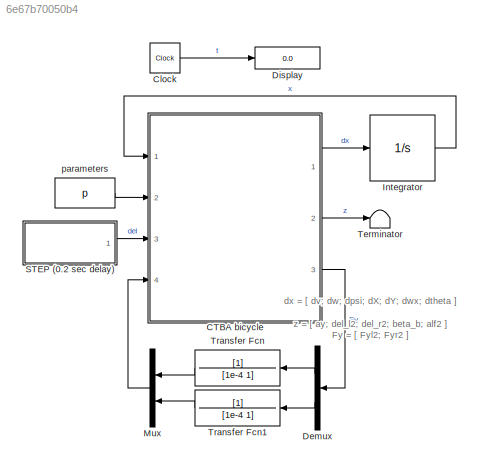
MODEL slx_6e67b70050b4
KIND model
CONFIG AbsTol = auto
CONFIG EnableMultiTasking = off
CONFIG FixedStep = auto
CONFIG MaxStep = dt
CONFIG MinStep = auto
CONFIG RelTol = 1e-3
CONFIG SampleTimeConstraint = Unconstrained
CONFIG Solver = VariableStepAuto
CONFIG SolverName = VariableStepAuto
CONFIG StartFcn = clc; clearvars\nclose all\n%% System Parameters (nominal)\n% i.e., for this investigation, ...the knobs\nm = 1452; % Mass of Vehicle (kg)\nJ = 2200; % Moment of Inertia (kg-m^2)\nJx = 510; % Roll Moment of Inertia (kg-m^2)\nL = 2.7; % Wheel base of Vehicle (m)\na = 1.120; % Length of a (m)\nb = L - a; % Length of b (m)\nh = 0.562; % C.G Height (m)\nCf = 50000; % Conering Coefficient of Front Tire (N/rad)\nCr ...<+565ch>
CONFIG StartTime = 0.0
CONFIG StopFcn = dx = datasave.get('dx').Values.Data;\nx = datasave.get('x').Values.Data;\nz = datasave.get('z').Values.Data;\nt = datasave.get('t').Values.Data;\n% Unpack states\nv = x(:,1);\nw = x(:,2);\npsi = x(:,3);\nX = x(:,4);\nY = x(:,5);\nwx = x(:,6);\ntheta = x(:,7);\n% Unpack additional outputs\nay = z(:,1);\ndel_l2 = z(:,2);\ndel_r2 = z(:,3);\nbeta_b = z(:,4);\nalf2 = z (:,5);\n\nmets\nplots
CONFIG StopTime = tmax
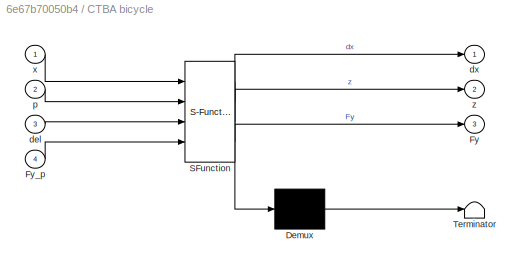
BLOCK [SubSystem] CTBA bicycle
  ErrorFcn = Stateflow.Translate.translate
  PermitHierarchicalResolution = ExplicitOnly
  Ports = [4, 3]
  RequestExecContextInheritance = off
  SFBlockType = MATLAB Function
  TreatAsAtomicUnit = on
  Variant = off
BLOCK [Demux] CTBA bicycle/ Demux 
  Outputs = 1
  Ports = [1, 1]
BLOCK [S-Function] CTBA bicycle/ SFunction 
  EnableBusSupport = on
  FunctionName = sf_sfun
  PortCounts = [4 4]
  Ports = [4, 4]
  SFcnIsStateOwnerBlock = off
  SFunctionDeploymentMode = off
  Tag = Stateflow S-Function bicycleCTBA 2
BLOCK [Terminator] CTBA bicycle/ Terminator 
BLOCK [Outport] CTBA bicycle/Fy
  IconDisplay = Port number
  Port = 3
BLOCK [Inport] CTBA bicycle/Fy_p
  IconDisplay = Port number
  Port = 4
BLOCK [Inport] CTBA bicycle/del
  IconDisplay = Port number
  Port = 3
BLOCK [Outport] CTBA bicycle/dx
  IconDisplay = Port number
BLOCK [Inport] CTBA bicycle/p
  IconDisplay = Port number
  Port = 2
BLOCK [Inport] CTBA bicycle/x
  IconDisplay = Port number
BLOCK [Outport] CTBA bicycle/z
  IconDisplay = Port number
  Port = 2
BLOCK [Clock] Clock
BLOCK [Demux] Demux
  DisplayOption = bar
  Outputs = 2
  Ports = [1, 2]
BLOCK [Display] Display
  Ports = [1]
BLOCK [Integrator] Integrator
  InitialCondition = init
  Ports = [1, 1]
BLOCK [Mux] Mux
  DisplayOption = bar
  Inputs = 2
  Ports = [2, 1]
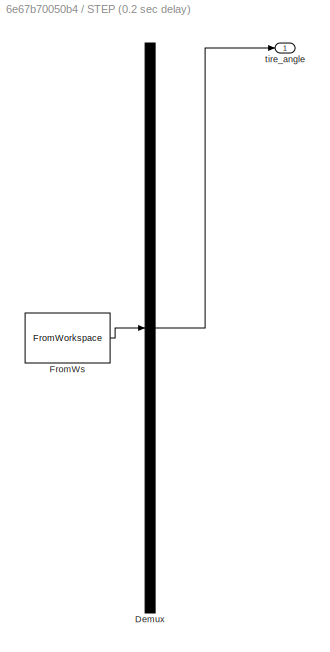
BLOCK [SubSystem] STEP (0.2 sec delay)
  ClipboardFcn = sigbuilder_block('clipboard');
  CloseFcn = sigbuilder_block('close');
  ContinueFcn = sigbuilder_block('continue');
  CopyFcn = sigbuilder_block('copy');
  DeleteFcn = sigbuilder_block('delete');
  LoadFcn = sigbuilder_block('load');
  MaskHideContents = on
  ModelCloseFcn = sigbuilder_block('modelClose');
  NameChangeFcn = sigbuilder_block('namechange');
  OpenFcn = sigbuilder_block('open',[567 140.25 550.5 399.75 ]);
  PauseFcn = sigbuilder_block('pause');
  Ports = [0, 1]
  PreSaveFcn = sigbuilder_block('preSave');
  RequestExecContextInheritance = off
  StartFcn = sigbuilder_block('start');
  StopFcn = sigbuilder_block('stop');
  Tag = STV Subsys
  Variant = off
BLOCK [Demux] STEP (0.2 sec delay)/Demux
  Outputs = 1
  Ports = [1, 1]
  Tag = STV Demux
BLOCK [FromWorkspace] STEP (0.2 sec delay)/FromWs
  SampleTime = 0
  Tag = STV FromWs
  VariableName = tuvar
  ZeroCross = on
BLOCK [Outport] STEP (0.2 sec delay)/tire_angle
  IconDisplay = Port number
  Tag = STV Outport
BLOCK [Terminator] Terminator
BLOCK [TransferFcn] Transfer Fcn
  Denominator = [1e-4 1]
BLOCK [TransferFcn] Transfer Fcn1
  Denominator = [1e-4 1]
BLOCK [Constant] parameters
  Value = p
ANNOTATION (root): dx = [ dv; dw; dpsi; dX; dY; dwx; dtheta ] z = [ ay; del_l2; del_r2; beta_b; alf2 ] Fy = [ Fyl2; Fyr2 ]
LINE CTBA bicycle:1 -> Integrator:1
LINE CTBA bicycle:2 -> Terminator:1
LINE CTBA bicycle:3 -> Demux:1
LINE Clock:1 -> Display:1
LINE Demux:1 -> Transfer Fcn:1
LINE Demux:2 -> Transfer Fcn1:1
LINE Integrator:1 -> CTBA bicycle:1
LINE Mux:1 -> CTBA bicycle:4
LINE STEP (0.2 sec delay):1 -> CTBA bicycle:3
LINE Transfer Fcn1:1 -> Mux:2
LINE Transfer Fcn:1 -> Mux:1
LINE parameters:1 -> CTBA bicycle:2
CHART CTBA bicycle states=1 transitions=1
  STATE_LABEL 'eML_blk_kernel()'
  STATE_LABEL 'SCRIPT:\nfunction [dx,z,Fy] = ctbabike(x, p, del, Fy_p)\n\n% m, J, Jx, a, b, h, Cf, Cr, Crr, ktau, Cls, vx\n\n% Unpack states\nv = x(1);\nw = x(2);\npsi = x(3);\n% X = x(4);\n% Y = x(5);\nwx = x(6);\ntheta = x(7);\n% Unpack parameters\nm = p(1); J = p(2); Jx = p(3);\na = p(4); b = p(5); h = p(6);\nCf = p(7); Cr = p(8); Crr = p(9);\nktau = p(10); Cls = p(11); vx = p(12);\n% Unpack previous tire forces\nFyl2_p = Fy_p(...<+1364ch>'
